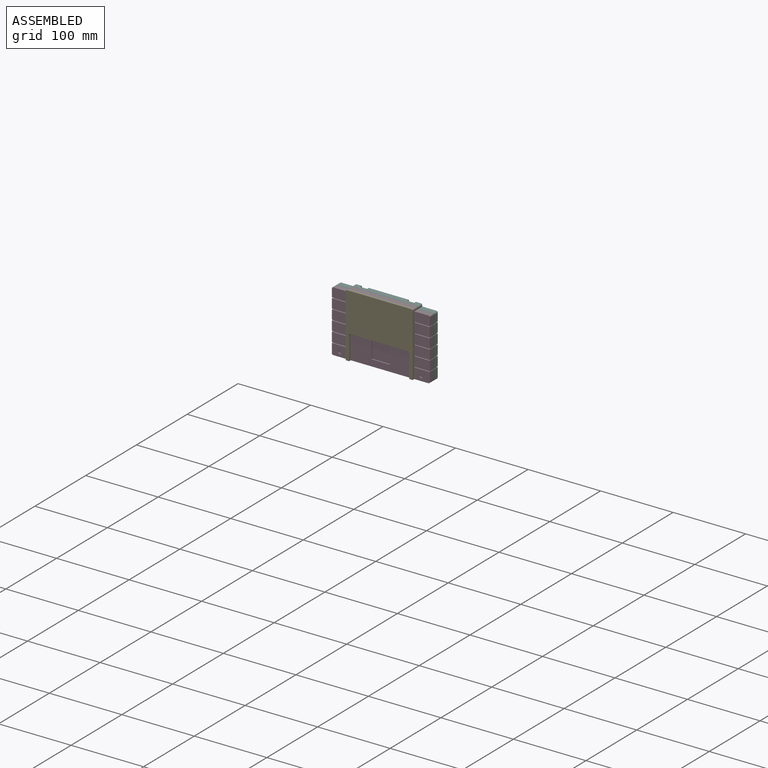
[diagram: assembled view]
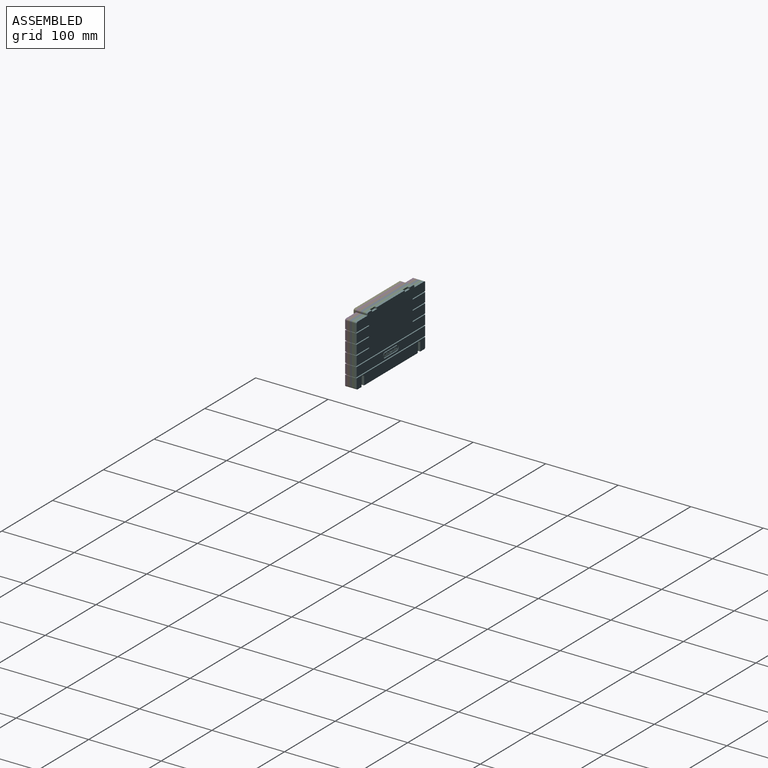
[diagram: assembled view, second angle]
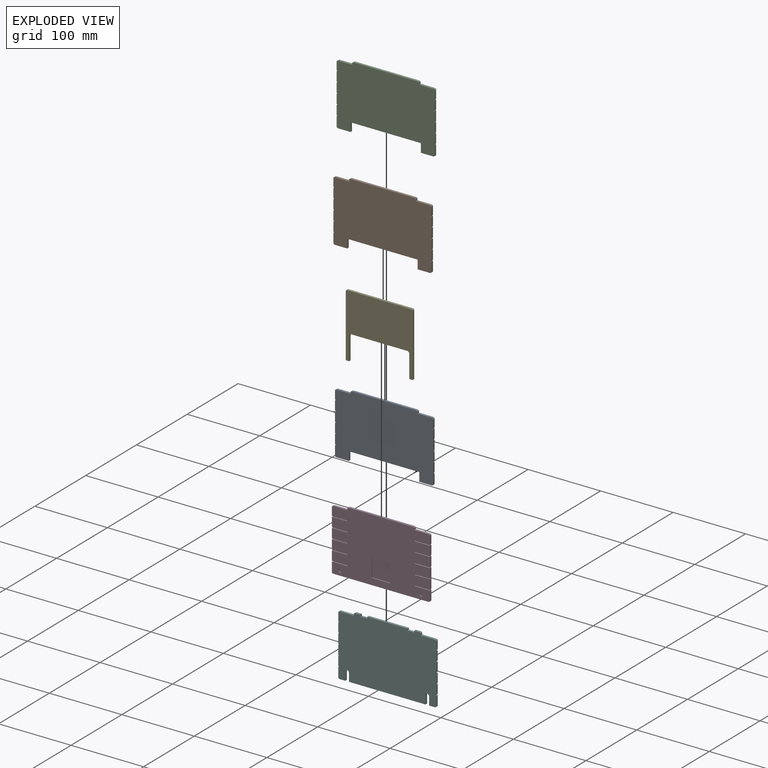
[diagram: exploded view]
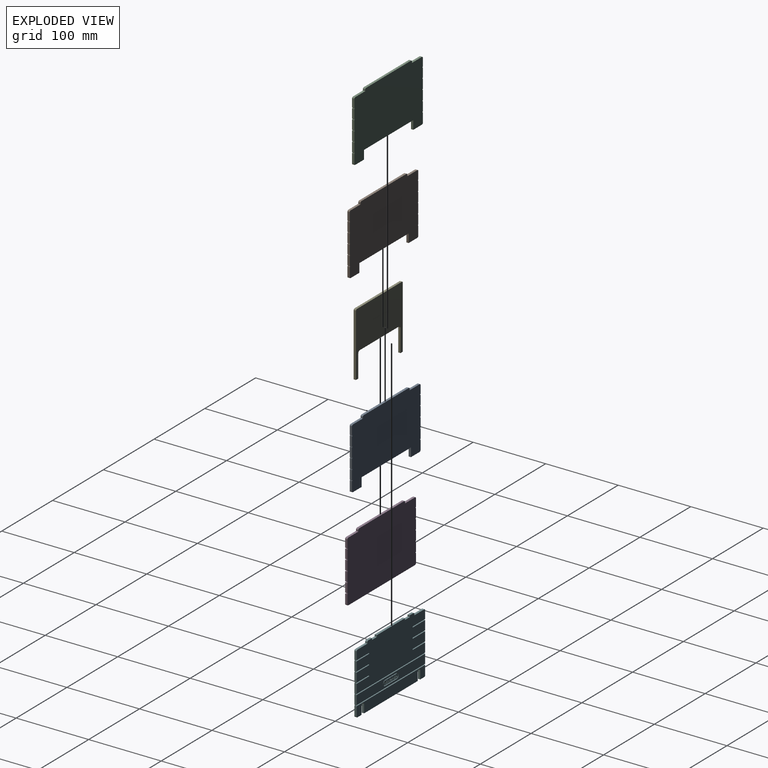
[diagram: exploded view, second angle]
ASSEMBLY  parts=6 mates=5
PART A: 60 faces, bbox 135x3.2x87.8 mm
  f0: plane 12.7x3.18mm, normal (-1,0,0), area 40.3mm2, adj f1,f57,f58,f59
  f1: plane 3.18x0.64mm, normal (0,0,-1), area 2mm2, adj f0,f2,f58,f59
  f2: plane 3.18x1.27mm, normal (-1,0,0), area 4mm2, adj f1,f3,f58,f59
  f3: plane 3.18x0.64mm, normal (0,0,1), area 2mm2, adj f2,f4,f58,f59
  f4: plane 12.73x3.18mm, normal (-1,0,0), area 40.4mm2, adj f3,f5,f58,f59
  f5: cylinder r=1.78mm len=3.18mm, axis (0,1,0), area 8.9mm2, adj f4,f6,f58,f59
  f6: plane 17.15x3.18mm, normal (0,0,-1), area 54.5mm2, adj f5,f7,f58,f59
  f7: plane 12.07x3.18mm, normal (1,0,0), area 38.3mm2, adj f6,f8,f58,f59
  f8: plane 97.16x3.18mm, normal (0,0,-1), area 308.5mm2, adj f7,f9,f58,f59
  f9: plane 12.07x3.18mm, normal (-1,0,0), area 38.3mm2, adj f8,f10,f58,f59
  f10: plane 17.15x3.18mm, normal (0,0,-1), area 54.5mm2, adj f9,f11,f58,f59
  f11: cylinder r=1.78mm len=3.18mm, axis (0,1,0), area 8.9mm2, adj f10,f12,f58,f59
  f12: plane 12.73x3.18mm, normal (1,0,0), area 40.4mm2, adj f11,f13,f58,f59
  f13: plane 3.18x0.64mm, normal (0,0,1), area 2mm2, adj f12,f14,f58,f59
  f14: plane 3.18x1.27mm, normal (1,0,0), area 4mm2, adj f13,f15,f58,f59
  f15: plane 3.18x0.64mm, normal (0,0,-1), area 2mm2, adj f14,f16,f58,f59
  f16: plane 12.7x3.18mm, normal (1,0,0), area 40.3mm2, adj f15,f17,f58,f59
  f17: plane 3.18x0.64mm, normal (0,0,1), area 2mm2, adj f16,f18,f58,f59
  f18: plane 3.18x1.27mm, normal (1,0,0), area 4mm2, adj f17,f19,f58,f59
  f19: plane 3.18x0.64mm, normal (0,0,-1), area 2mm2, adj f18,f20,f58,f59
  f20: plane 12.7x3.18mm, normal (1,0,0), area 40.3mm2, adj f19,f21,f58,f59
  f21: plane 3.18x0.64mm, normal (0,0,1), area 2mm2, adj f20,f22,f58,f59
  f22: plane 3.18x1.27mm, normal (1,0,0), area 4mm2, adj f21,f23,f58,f59
  f23: plane 3.18x0.64mm, normal (0,0,-1), area 2mm2, adj f22,f24,f58,f59
  f24: plane 12.7x3.18mm, normal (1,0,0), area 40.3mm2, adj f23,f25,f58,f59
  f25: plane 3.18x0.64mm, normal (0,0,1), area 2mm2, adj f24,f26,f58,f59
  f26: plane 3.18x1.27mm, normal (1,0,0), area 4mm2, adj f25,f27,f58,f59
  f27: plane 3.18x0.64mm, normal (0,0,-1), area 2mm2, adj f26,f28,f58,f59
  f28: plane 12.7x3.18mm, normal (1,0,0), area 40.3mm2, adj f27,f29,f58,f59
  f29: plane 3.18x0.64mm, normal (0,0,1), area 2mm2, adj f28,f30,f58,f59
  f30: plane 3.18x1.27mm, normal (1,0,0), area 4mm2, adj f29,f31,f58,f59
  f31: plane 3.18x0.64mm, normal (0,0,-1), area 2mm2, adj f30,f32,f58,f59
  f32: plane 10.92x3.18mm, normal (1,0,0), area 34.7mm2, adj f31,f33,f58,f59
  f33: cylinder r=1.78mm len=3.18mm, axis (0,1,0), area 8.9mm2, adj f32,f34,f58,f59
  f34: plane 19.61x3.18mm, normal (0,0,1), area 62.3mm2, adj f33,f35,f58,f59
  f35: plane 3.18x1.7mm, normal (1,0,0), area 5.4mm2, adj f34,f36,f58,f59
  f36: cylinder r=1.78mm len=3.18mm, axis (0,1,0), area 8.9mm2, adj f35,f37,f58,f59
  f37: plane 88.68x3.18mm, normal (0,0,1), area 281.6mm2, adj f36,f38,f58,f59
  f38: cylinder r=1.78mm len=3.18mm, axis (0,1,0), area 8.9mm2, adj f37,f39,f58,f59
  f39: plane 3.18x1.7mm, normal (-1,0,0), area 5.4mm2, adj f38,f40,f58,f59
  f40: plane 19.61x3.18mm, normal (0,0,1), area 62.3mm2, adj f39,f41,f58,f59
  f41: cylinder r=1.78mm len=3.18mm, axis (0,1,0), area 8.9mm2, adj f40,f42,f58,f59
  f42: plane 10.92x3.18mm, normal (-1,0,0), area 34.7mm2, adj f41,f43,f58,f59
  f43: plane 3.18x0.64mm, normal (0,0,-1), area 2mm2, adj f42,f44,f58,f59
  f44: plane 3.18x1.27mm, normal (-1,0,0), area 4mm2, adj f43,f45,f58,f59
  f45: plane 3.18x0.64mm, normal (0,0,1), area 2mm2, adj f44,f46,f58,f59
  f46: plane 12.7x3.18mm, normal (-1,0,0), area 40.3mm2, adj f45,f47,f58,f59
  f47: plane 3.18x0.64mm, normal (0,0,-1), area 2mm2, adj f46,f48,f58,f59
  f48: plane 3.18x1.27mm, normal (-1,0,0), area 4mm2, adj f47,f49,f58,f59
  f49: plane 3.18x0.64mm, normal (0,0,1), area 2mm2, adj f48,f50,f58,f59
  f50: plane 12.7x3.18mm, normal (-1,0,0), area 40.3mm2, adj f49,f51,f58,f59
  f51: plane 3.18x0.64mm, normal (0,0,-1), area 2mm2, adj f50,f52,f58,f59
  f52: plane 3.18x1.27mm, normal (-1,0,0), area 4mm2, adj f51,f53,f58,f59
  f53: plane 3.18x0.64mm, normal (0,0,1), area 2mm2, adj f52,f54,f58,f59
  f54: plane 12.7x3.18mm, normal (-1,0,0), area 40.3mm2, adj f53,f55,f58,f59
  f55: plane 3.18x0.64mm, normal (0,0,-1), area 2mm2, adj f54,f56,f58,f59
  f56: plane 3.18x1.27mm, normal (-1,0,0), area 4mm2, adj f55,f57,f58,f59
  f57: plane 3.18x0.64mm, normal (0,0,1), area 2mm2, adj f0,f56,f58,f59
  f58: plane 135.01x87.83mm, normal (0,-1,0), area 10525.3mm2, adj f0,f1,f2,f3,f4,f5,f6,f7
  f59: plane 135.01x87.83mm, normal (0,1,0), area 10525.3mm2, adj f0,f1,f2,f3,f4,f5,f6,f7
PART B: same geometry as A
PART C: same geometry as A
PART D: 85 faces, bbox 135x3.2x87.8 mm
  f0: plane 135.01x87.83mm, normal (0,-1,0), area 10748.2mm2, adj f2,f3,f4,f6,f7,f8,f10,f11
  f1: plane 1.59x1.27mm, normal (1,0,0), area 2mm2, adj f2,f54,f55,f63
  f2: plane 21.39x3.18mm, normal (0,0,-1), area 35mm2, adj f0,f1,f3,f55,f62,f63
  f3: plane 12.7x3.18mm, normal (1,0,0), area 40.3mm2, adj f0,f2,f4,f55
  f4: plane 21.39x3.18mm, normal (0,0,1), area 35mm2, adj f0,f3,f5,f55,f60,f61
  f5: plane 1.59x1.27mm, normal (1,0,0), area 2mm2, adj f4,f6,f55,f61
  f6: plane 21.39x3.18mm, normal (0,0,-1), area 35mm2, adj f0,f5,f7,f55,f60,f61
  f7: plane 12.7x3.18mm, normal (1,0,0), area 40.3mm2, adj f0,f6,f8,f55
  f8: plane 21.39x3.18mm, normal (0,0,1), area 35mm2, adj f0,f7,f9,f55,f58,f59
  f9: plane 1.59x1.27mm, normal (1,0,0), area 2mm2, adj f8,f10,f55,f59
  f10: plane 21.39x3.18mm, normal (0,0,-1), area 35mm2, adj f0,f9,f11,f55,f58,f59
  f11: plane 10.92x3.18mm, normal (1,0,0), area 34.7mm2, adj f0,f10,f12,f55
  f12: cylinder r=1.78mm len=3.18mm, axis (0,-1,0), area 8.9mm2, adj f0,f11,f13,f55
  f13: plane 19.61x3.18mm, normal (0,0,1), area 62.3mm2, adj f0,f12,f14,f55
  f14: plane 3.18x1.7mm, normal (1,0,0), area 5.4mm2, adj f0,f13,f15,f55
  f15: cylinder r=1.78mm len=3.18mm, axis (0,-1,0), area 8.9mm2, adj f0,f14,f16,f55
  f16: plane 88.68x3.18mm, normal (0,0,1), area 281.6mm2, adj f0,f15,f17,f55
  f17: cylinder r=1.78mm len=3.18mm, axis (0,-1,0), area 8.9mm2, adj f0,f16,f18,f55
  f18: plane 3.18x1.7mm, normal (-1,0,0), area 5.4mm2, adj f0,f17,f19,f55
  f19: plane 19.61x3.18mm, normal (0,0,1), area 62.3mm2, adj f0,f18,f20,f55
  f20: cylinder r=1.78mm len=3.18mm, axis (0,-1,0), area 8.9mm2, adj f0,f19,f21,f55
  f21: plane 10.92x3.18mm, normal (-1,0,0), area 34.7mm2, adj f0,f20,f22,f55
  f22: plane 21.39x3.18mm, normal (0,0,-1), area 35mm2, adj f0,f21,f23,f55,f56,f57
  f23: plane 1.59x1.27mm, normal (-1,0,0), area 2mm2, adj f22,f24,f55,f57
  f24: plane 21.39x3.18mm, normal (0,0,1), area 35mm2, adj f0,f23,f25,f55,f56,f57
  f25: plane 12.7x3.18mm, normal (-1,0,0), area 40.3mm2, adj f0,f24,f26,f55
  f26: plane 21.39x3.18mm, normal (0,0,-1), area 35mm2, adj f0,f25,f27,f55,f66,f67
  f27: plane 1.59x1.27mm, normal (-1,0,0), area 2mm2, adj f26,f28,f55,f67
  f28: plane 21.39x3.18mm, normal (0,0,1), area 35mm2, adj f0,f27,f29,f55,f66,f67
  f29: plane 12.7x3.18mm, normal (-1,0,0), area 40.3mm2, adj f0,f28,f30,f55
  f30: plane 21.39x3.18mm, normal (0,0,-1), area 35mm2, adj f0,f29,f31,f55,f68,f69
  f31: plane 1.59x1.27mm, normal (-1,0,0), area 2mm2, adj f30,f32,f55,f69
  f32: plane 21.39x3.18mm, normal (0,0,1), area 35mm2, adj f0,f31,f33,f55,f68,f69
  f33: plane 12.7x3.18mm, normal (-1,0,0), area 40.3mm2, adj f0,f32,f34,f55
  f34: plane 21.39x3.18mm, normal (0,0,-1), area 35mm2, adj f0,f33,f35,f55,f70,f71
  f35: plane 1.59x1.27mm, normal (-1,0,0), area 2mm2, adj f34,f36,f55,f71
  f36: plane 21.39x3.18mm, normal (0,0,1), area 35mm2, adj f0,f35,f37,f55,f70,f71
  f37: plane 12.7x3.18mm, normal (-1,0,0), area 40.3mm2, adj f0,f36,f38,f55
  f38: plane 21.39x3.18mm, normal (0,0,-1), area 35mm2, adj f0,f37,f39,f55,f72,f73
  f39: plane 1.59x1.27mm, normal (-1,0,0), area 2mm2, adj f38,f40,f55,f73
  f40: plane 21.39x3.18mm, normal (0,0,1), area 35mm2, adj f0,f39,f41,f55,f72,f73
  f41: plane 12.73x3.18mm, normal (-1,0,0), area 40.4mm2, adj f0,f40,f42,f55
  f42: cylinder r=1.78mm len=3.18mm, axis (0,-1,0), area 8.9mm2, adj f0,f41,f43,f55
  f43: plane 131.46x3.18mm, normal (0,0,-1), area 417.4mm2, adj f0,f42,f44,f55
  f44: cylinder r=1.78mm len=3.18mm, axis (0,-1,0), area 8.9mm2, adj f0,f43,f45,f55
  f45: plane 12.73x3.18mm, normal (1,0,0), area 40.4mm2, adj f0,f44,f46,f55
  f46: plane 21.39x3.18mm, normal (0,0,1), area 35mm2, adj f0,f45,f47,f55,f83,f84
  f47: plane 1.59x1.27mm, normal (1,0,0), area 2mm2, adj f46,f48,f55,f84
  f48: plane 21.39x3.18mm, normal (0,0,-1), area 35mm2, adj f0,f47,f49,f55,f83,f84
  f49: plane 12.7x3.18mm, normal (1,0,0), area 40.3mm2, adj f0,f48,f50,f55
  f50: plane 21.39x3.18mm, normal (0,0,1), area 35mm2, adj f0,f49,f51,f55,f64,f65
  f51: plane 1.59x1.27mm, normal (1,0,0), area 2mm2, adj f50,f52,f55,f65
  f52: plane 21.39x3.18mm, normal (0,0,-1), area 35mm2, adj f0,f51,f53,f55,f64,f65
  f53: plane 12.7x3.18mm, normal (1,0,0), area 40.3mm2, adj f0,f52,f54,f55
  f54: plane 21.39x3.18mm, normal (0,0,1), area 35mm2, adj f0,f1,f53,f55,f62,f63
  f55: plane 135.01x87.83mm, normal (0,1,0), area 11697.5mm2, adj f1,f2,f3,f4,f5,f6,f7,f8
  f56: plane 1.59x1.27mm, normal (-1,0,0), area 2mm2, adj f0,f22,f24,f57
  f57: plane 20.75x1.27mm, normal (0,-1,0), area 26.4mm2, adj f22,f23,f24,f56
  f58: plane 1.59x1.27mm, normal (1,0,0), area 2mm2, adj f0,f8,f10,f59
  f59: plane 20.75x1.27mm, normal (0,-1,0), area 26.4mm2, adj f8,f9,f10,f58
  f60: plane 1.59x1.27mm, normal (1,0,0), area 2mm2, adj f0,f4,f6,f61
  f61: plane 20.75x1.27mm, normal (0,-1,0), area 26.4mm2, adj f4,f5,f6,f60
  f62: plane 1.59x1.27mm, normal (1,0,0), area 2mm2, adj f0,f2,f54,f63
  f63: plane 20.75x1.27mm, normal (0,-1,0), area 26.4mm2, adj f1,f2,f54,f62
  f64: plane 1.59x1.27mm, normal (1,0,0), area 2mm2, adj f0,f50,f52,f65
  f65: plane 20.75x1.27mm, normal (0,-1,0), area 26.4mm2, adj f50,f51,f52,f64
  f66: plane 1.59x1.27mm, normal (-1,0,0), area 2mm2, adj f0,f26,f28,f67
  f67: plane 20.75x1.27mm, normal (0,-1,0), area 26.4mm2, adj f26,f27,f28,f66
  f68: plane 1.59x1.27mm, normal (-1,0,0), area 2mm2, adj f0,f30,f32,f69
  f69: plane 20.75x1.27mm, normal (0,-1,0), area 26.4mm2, adj f30,f31,f32,f68
  f70: plane 1.59x1.27mm, normal (-1,0,0), area 2mm2, adj f0,f34,f36,f71
  f71: plane 20.75x1.27mm, normal (0,-1,0), area 26.4mm2, adj f34,f35,f36,f70
  f72: plane 1.59x1.27mm, normal (-1,0,0), area 2mm2, adj f0,f38,f40,f73
  f73: plane 20.75x1.27mm, normal (0,-1,0), area 26.4mm2, adj f38,f39,f40,f72
  f74: cylinder r=2.54mm len=5.08mm, axis (0,-1,0), area 25.3mm2, adj f0,f75
  f75: plane 5.08x5.08mm, normal (0,-1,0), area 20.3mm2, adj f74
  f76: plane 25.4x1.59mm, normal (1,0,0), area 40.3mm2, adj f0,f77,f79,f80
  f77: plane 25.4x1.59mm, normal (0,0,1), area 40.3mm2, adj f0,f76,f78,f80
  f78: plane 25.4x1.59mm, normal (-1,0,0), area 40.3mm2, adj f0,f77,f79,f80
  f79: plane 25.4x1.59mm, normal (0,0,-1), area 40.3mm2, adj f0,f76,f78,f80
  f80: plane 25.4x25.4mm, normal (0,-1,0), area 645.2mm2, adj f76,f77,f78,f79
  f81: cylinder r=2.54mm len=5.08mm, axis (0,-1,0), area 25.3mm2, adj f0,f82
  f82: plane 5.08x5.08mm, normal (0,-1,0), area 20.3mm2, adj f81
  f83: plane 1.59x1.27mm, normal (1,0,0), area 2mm2, adj f0,f46,f48,f84
  f84: plane 20.75x1.27mm, normal (0,-1,0), area 26.4mm2, adj f46,f47,f48,f83
PART E: 14 faces, bbox 92.2x3.2x87.8 mm
  f0: cylinder r=1.78mm len=3.18mm, axis (0,1,0), area 8.9mm2, adj f1,f11,f12,f13
  f1: plane 88.68x3.18mm, normal (0,0,1), area 281.6mm2, adj f0,f2,f12,f13
  f2: cylinder r=1.78mm len=3.18mm, axis (0,1,0), area 8.9mm2, adj f1,f3,f12,f13
  f3: plane 86.06x3.18mm, normal (-1,0,0), area 273.2mm2, adj f2,f4,f12,f13
  f4: plane 4.57x3.18mm, normal (0,0,-1), area 14.5mm2, adj f3,f5,f12,f13
  f5: plane 31.41x3.18mm, normal (1,0,0), area 99.7mm2, adj f4,f6,f12,f13
  f6: cylinder r=2.9mm len=3.18mm, axis (0,1,0), area 14.5mm2, adj f5,f7,f12,f13
  f7: plane 77.29x3.18mm, normal (0,0,-1), area 245.4mm2, adj f6,f8,f12,f13
  f8: cylinder r=2.9mm len=3.18mm, axis (0,1,0), area 14.5mm2, adj f7,f9,f12,f13
  f9: plane 31.41x3.18mm, normal (-1,0,0), area 99.7mm2, adj f8,f10,f12,f13
  f10: plane 4.57x3.18mm, normal (0,0,-1), area 14.5mm2, adj f9,f11,f12,f13
  f11: plane 86.06x3.18mm, normal (1,0,0), area 273.2mm2, adj f0,f10,f12,f13
  f12: plane 92.24x87.83mm, normal (0,-1,0), area 5252.4mm2, adj f0,f1,f2,f3,f4,f5,f6,f7
  f13: plane 92.24x87.83mm, normal (0,1,0), area 5252.4mm2, adj f0,f1,f2,f3,f4,f5,f6,f7
PART F: 222 faces, bbox 135x3.2x87.8 mm
  f0: plane 135.01x58.09mm, normal (0,-1,0), area 7459.4mm2, adj f7,f8,f10,f11,f12,f14,f15,f16
  f1: plane 135.01x12.7mm, normal (0,-1,0), area 1494.8mm2, adj f4,f5,f52,f53,f78,f79,f80,f87
  f2: plane 135.01x14.5mm, normal (0,-1,0), area 1821.4mm2, adj f55,f56,f57,f58,f59,f60,f61,f62
  f3: plane 1.59x1.27mm, normal (1,0,0), area 2mm2, adj f4,f55,f69,f93
  f4: plane 135.01x3.18mm, normal (0,0,-1), area 216.3mm2, adj f1,f3,f5,f53,f54,f69,f93
  f5: plane 12.7x3.18mm, normal (1,0,0), area 40.3mm2, adj f1,f4,f52,f69
  f6: plane 1.59x1.27mm, normal (1,0,0), area 2mm2, adj f50,f52,f69,f94
  f7: plane 12.7x3.18mm, normal (1,0,0), area 40.3mm2, adj f0,f8,f50,f69
  f8: plane 24.13x3.18mm, normal (0,0,1), area 39.3mm2, adj f0,f7,f9,f69,f72,f73
  f9: plane 1.59x1.27mm, normal (1,0,0), area 2mm2, adj f8,f10,f69,f73
  f10: plane 24.13x3.18mm, normal (0,0,-1), area 39.3mm2, adj f0,f9,f11,f69,f72,f73
  f11: plane 12.7x3.18mm, normal (1,0,0), area 40.3mm2, adj f0,f10,f12,f69
  f12: plane 24.13x3.18mm, normal (0,0,1), area 39.3mm2, adj f0,f11,f13,f69,f74,f75
  f13: plane 1.59x1.27mm, normal (1,0,0), area 2mm2, adj f12,f14,f69,f75
  f14: plane 24.13x3.18mm, normal (0,0,-1), area 39.3mm2, adj f0,f13,f15,f69,f74,f75
  f15: plane 12.7x3.18mm, normal (1,0,0), area 40.3mm2, adj f0,f14,f16,f69
  f16: plane 24.13x3.18mm, normal (0,0,1), area 39.3mm2, adj f0,f15,f17,f69,f76,f77
  f17: plane 1.59x1.27mm, normal (1,0,0), area 2mm2, adj f16,f18,f69,f77
  f18: plane 24.13x3.18mm, normal (0,0,-1), area 39.3mm2, adj f0,f17,f19,f69,f76,f77
  f19: plane 10.92x3.18mm, normal (1,0,0), area 34.7mm2, adj f0,f18,f20,f69
  f20: cylinder r=1.78mm len=3.18mm, axis (0,-1,0), area 8.9mm2, adj f0,f19,f21,f69
  f21: plane 19.61x3.18mm, normal (0,0,1), area 62.3mm2, adj f0,f20,f22,f69
  f22: plane 3.18x1.7mm, normal (1,0,0), area 5.4mm2, adj f0,f21,f23,f69
  f23: cylinder r=1.78mm len=3.18mm, axis (0,-1,0), area 8.9mm2, adj f0,f22,f24,f69
  f24: plane 7.11x3.18mm, normal (0,0,1), area 22.6mm2, adj f0,f23,f25,f69
  f25: plane 3.18x2.29mm, normal (-1,0,0), area 7.3mm2, adj f0,f24,f26,f69
  f26: plane 9.65x3.18mm, normal (0,0,1), area 30.6mm2, adj f0,f25,f27,f69
  f27: plane 3.18x2.29mm, normal (1,0,0), area 7.3mm2, adj f0,f26,f28,f69
  f28: plane 55.15x3.18mm, normal (0,0,1), area 175.1mm2, adj f0,f27,f29,f69
  f29: plane 3.18x2.29mm, normal (-1,0,0), area 7.3mm2, adj f0,f28,f30,f69
  f30: plane 9.65x3.18mm, normal (0,0,1), area 30.6mm2, adj f0,f29,f31,f69
  f31: plane 3.18x2.29mm, normal (1,0,0), area 7.3mm2, adj f0,f30,f32,f69
  f32: plane 7.11x3.18mm, normal (0,0,1), area 22.6mm2, adj f0,f31,f33,f69
  f33: cylinder r=1.78mm len=3.18mm, axis (0,-1,0), area 8.9mm2, adj f0,f32,f34,f69
  f34: plane 3.18x1.7mm, normal (-1,0,0), area 5.4mm2, adj f0,f33,f35,f69
  f35: plane 19.61x3.18mm, normal (0,0,1), area 62.3mm2, adj f0,f34,f36,f69
  f36: cylinder r=1.78mm len=3.18mm, axis (0,-1,0), area 8.9mm2, adj f0,f35,f37,f69
  f37: plane 10.92x3.18mm, normal (-1,0,0), area 34.7mm2, adj f0,f36,f38,f69
  f38: plane 24.13x3.18mm, normal (0,0,-1), area 39.3mm2, adj f0,f37,f39,f69,f89,f90
  f39: plane 1.59x1.27mm, normal (-1,0,0), area 2mm2, adj f38,f40,f69,f90
  f40: plane 24.13x3.18mm, normal (0,0,1), area 39.3mm2, adj f0,f39,f41,f69,f89,f90
  f41: plane 12.7x3.18mm, normal (-1,0,0), area 40.3mm2, adj f0,f40,f42,f69
  f42: plane 24.13x3.18mm, normal (0,0,-1), area 39.3mm2, adj f0,f41,f43,f69,f91,f92
  f43: plane 1.59x1.27mm, normal (-1,0,0), area 2mm2, adj f42,f44,f69,f92
  f44: plane 24.13x3.18mm, normal (0,0,1), area 39.3mm2, adj f0,f43,f45,f69,f91,f92
  f45: plane 12.7x3.18mm, normal (-1,0,0), area 40.3mm2, adj f0,f44,f46,f69
  f46: plane 24.13x3.18mm, normal (0,0,-1), area 39.3mm2, adj f0,f45,f47,f69,f70,f71
  f47: plane 1.59x1.27mm, normal (-1,0,0), area 2mm2, adj f46,f48,f69,f71
  f48: plane 24.13x3.18mm, normal (0,0,1), area 39.3mm2, adj f0,f47,f49,f69,f70,f71
  f49: plane 12.7x3.18mm, normal (-1,0,0), area 40.3mm2, adj f0,f48,f50,f69
  f50: plane 135.01x3.18mm, normal (0,0,-1), area 216.3mm2, adj f0,f6,f7,f49,f51,f69,f94
  f51: plane 1.59x1.27mm, normal (-1,0,0), area 2mm2, adj f50,f52,f69,f94
  f52: plane 135.01x3.18mm, normal (0,0,1), area 216.3mm2, adj f1,f5,f6,f51,f53,f69,f94
  f53: plane 12.7x3.18mm, normal (-1,0,0), area 40.3mm2, adj f1,f4,f52,f69
  f54: plane 1.59x1.27mm, normal (-1,0,0), area 2mm2, adj f4,f55,f69,f93
  f55: plane 135.01x3.18mm, normal (0,0,1), area 216.3mm2, adj f2,f3,f54,f56,f68,f69,f93
  f56: plane 12.73x3.18mm, normal (-1,0,0), area 40.4mm2, adj f2,f55,f57,f69
  f57: cylinder r=1.78mm len=3.18mm, axis (0,-1,0), area 8.9mm2, adj f2,f56,f58,f69
  f58: plane 7.88x3.18mm, normal (0,0,-1), area 25mm2, adj f2,f57,f59,f69
  f59: plane 11.33x3.18mm, normal (1,0,0), area 36mm2, adj f2,f58,f60,f69
  f60: cylinder r=2.54mm len=5.08mm, axis (0,-1,0), area 25.3mm2, adj f2,f59,f61,f69
  f61: plane 11.33x3.18mm, normal (-1,0,0), area 36mm2, adj f2,f60,f62,f69
  f62: plane 105.55x3.18mm, normal (0,0,-1), area 335.1mm2, adj f2,f61,f63,f69
  f63: plane 11.33x3.18mm, normal (1,0,0), area 36mm2, adj f2,f62,f64,f69
  f64: cylinder r=2.54mm len=5.08mm, axis (0,-1,0), area 25.3mm2, adj f2,f63,f65,f69
  f65: plane 11.33x3.18mm, normal (-1,0,0), area 36mm2, adj f2,f64,f66,f69
  f66: plane 7.88x3.18mm, normal (0,0,-1), area 25mm2, adj f2,f65,f67,f69
  f67: cylinder r=1.78mm len=3.18mm, axis (0,-1,0), area 8.9mm2, adj f2,f66,f68,f69
  f68: plane 12.73x3.18mm, normal (1,0,0), area 40.4mm2, adj f2,f55,f67,f69
  f69: plane 135.01x87.83mm, normal (0,1,0), area 11518mm2, adj f3,f4,f5,f6,f7,f8,f9,f10
  f70: cylinder r=0.64mm len=1.59mm, axis (0,-1,0), area 3.2mm2, adj f0,f46,f48,f71
  f71: plane 24.13x1.27mm, normal (0,-1,0), area 30.5mm2, adj f46,f47,f48,f70
  f72: cylinder r=0.64mm len=1.59mm, axis (0,-1,0), area 3.2mm2, adj f0,f8,f10,f73
  f73: plane 24.13x1.27mm, normal (0,-1,0), area 30.5mm2, adj f8,f9,f10,f72
  f74: cylinder r=0.64mm len=1.59mm, axis (0,-1,0), area 3.2mm2, adj f0,f12,f14,f75
  f75: plane 24.13x1.27mm, normal (0,-1,0), area 30.5mm2, adj f12,f13,f14,f74
  f76: cylinder r=0.64mm len=1.59mm, axis (0,-1,0), area 3.2mm2, adj f0,f16,f18,f77
  f77: plane 24.13x1.27mm, normal (0,-1,0), area 30.5mm2, adj f16,f17,f18,f76
  f78: cylinder r=3.81mm len=7.62mm, axis (0,-1,0), area 19mm2, adj f1,f79,f87,f88
  f79: plane 22.86x1.59mm, normal (0,0,-1), area 36.3mm2, adj f1,f78,f80,f88
  f80: cylinder r=3.81mm len=7.62mm, axis (0,-1,0), area 19mm2, adj f1,f79,f87,f88
  f81: extruded ~3.1x2.87mm, area 7.5mm2, adj f82,f86,f88,f95
  f82: plane 22.83x1.59mm, normal (0,0,1), area 36.2mm2, adj f81,f83,f88,f95
  f83: extruded ~3.1x2.87mm, area 7.5mm2, adj f82,f84,f88,f95
  f84: extruded ~3.1x2.87mm, area 7.5mm2, adj f83,f85,f88,f95
  f85: plane 22.83x1.59mm, normal (0,0,-1), area 36.2mm2, adj f84,f86,f88,f95
  f86: extruded ~3.1x2.87mm, area 7.5mm2, adj f81,f85,f88,f95
  f87: plane 22.86x1.59mm, normal (0,0,1), area 36.3mm2, adj f1,f78,f80,f88
  f88: plane 30.48x7.62mm, normal (0,-1,0), area 60mm2, adj f78,f79,f80,f81,f82,f83,f84,f85
  f89: cylinder r=0.64mm len=1.59mm, axis (0,-1,0), area 3.2mm2, adj f0,f38,f40,f90
  f90: plane 24.13x1.27mm, normal (0,-1,0), area 30.5mm2, adj f38,f39,f40,f89
  f91: cylinder r=0.64mm len=1.59mm, axis (0,-1,0), area 3.2mm2, adj f0,f42,f44,f92
  f92: plane 24.13x1.27mm, normal (0,-1,0), area 30.5mm2, adj f42,f43,f44,f91
  f93: plane 133.74x1.27mm, normal (0,-1,0), area 169.9mm2, adj f3,f4,f54,f55
  f94: plane 133.74x1.27mm, normal (0,-1,0), area 169.9mm2, adj f6,f50,f51,f52
  f95: plane 29.04x5.77mm, normal (0,-1,0), area 111.5mm2, adj f81,f82,f83,f84,f85,f86,f96,f97
  f96: plane 1.59x0.31mm, normal (0,0,-1), area 0.5mm2, adj f95,f97,f110,f111
  f97: plane 1.59x0.82mm, normal (1,0,0), area 1.3mm2, adj f95,f96,f98,f111
  f98: plane 1.59x0.12mm, normal (0,0,1), area 0.2mm2, adj f95,f97,f99,f111
  f99: plane 1.59x0.35mm, normal (-1,0,0), area 0.6mm2, adj f95,f98,f100,f111
  f100: plane 1.59x0.14mm, normal (0,0,1), area 0.2mm2, adj f95,f99,f101,f111
  f101: plane 1.59x0.35mm, normal (0.85,0,0.52), area 0.7mm2, adj f95,f100,f102,f111
  f102: plane 1.59x0.14mm, normal (0,0,1), area 0.2mm2, adj f95,f101,f103,f111
  f103: plane 1.59x0.36mm, normal (-0.84,0,-0.54), area 0.7mm2, adj f95,f102,f104,f111
  f104: extruded ~1.59x0.22mm, area 0.5mm2, adj f95,f103,f110,f111
  f105: extruded ~1.59x0.2mm, area 0.4mm2, adj f106,f109,f111,f112
  f106: plane 1.59x0.15mm, normal (0,0,-1), area 0.2mm2, adj f105,f107,f111,f112
  f107: plane 1.59x0.25mm, normal (-1,0,0), area 0.4mm2, adj f106,f108,f111,f112
  f108: plane 1.59x0.17mm, normal (0,0,1), area 0.3mm2, adj f107,f109,f111,f112
  f109: extruded ~1.59x0.18mm, area 0.4mm2, adj f105,f108,f111,f112
  f110: extruded ~1.59x0.29mm, area 0.7mm2, adj f95,f96,f104,f111
  f111: plane 0.82x0.62mm, normal (0,-1,0), area 0.3mm2, adj f96,f97,f98,f99,f100,f101,f102,f103
  f112: plane 0.35x0.25mm, normal (0,-1,0), area 0.1mm2, adj f105,f106,f107,f108,f109
  f113: extruded ~1.59x1.58mm, area 3.6mm2, adj f95,f114,f125,f126
  f114: extruded ~1.59x1.58mm, area 3.6mm2, adj f95,f113,f115,f126
  f115: extruded ~1.59x1.58mm, area 3.6mm2, adj f95,f114,f125,f126
  f116: extruded ~1.59x0.53mm, area 1.2mm2, adj f117,f124,f126,f127
  f117: extruded ~1.59x0.53mm, area 1.2mm2, adj f116,f118,f126,f127
  f118: extruded ~1.59x0.51mm, area 0.8mm2, adj f117,f119,f126,f127
  f119: plane 1.59x0mm, normal (1,0,0), area 0mm2, adj f118,f120,f126,f127
  f120: extruded ~1.59x0.5mm, area 0.8mm2, adj f119,f121,f126,f127
  f121: extruded ~1.59x0.54mm, area 1.2mm2, adj f120,f122,f126,f127
  f122: extruded ~1.59x0.54mm, area 1.2mm2, adj f121,f123,f126,f127
  f123: extruded ~1.59x0.51mm, area 0.8mm2, adj f122,f124,f126,f127
  f124: extruded ~1.59x0.5mm, area 0.8mm2, adj f116,f123,f126,f127
  f125: extruded ~1.59x1.58mm, area 3.6mm2, adj f95,f113,f115,f126
  f126: plane 3.15x2.68mm, normal (0,-1,0), area 5mm2, adj f113,f114,f115,f116,f117,f118,f119,f120
  f127: plane 2.08x0.88mm, normal (0,-1,0), area 1.7mm2, adj f116,f117,f118,f119,f120,f121,f122,f123
  f128: plane 1.59x1.32mm, normal (1,0,0), area 2.1mm2, adj f95,f129,f142,f143
  f129: extruded ~1.59x0.61mm, area 1mm2, adj f95,f128,f130,f143
  f130: extruded ~1.59x1.37mm, area 3.3mm2, adj f95,f129,f131,f143
  f131: extruded ~1.59x1.18mm, area 2.3mm2, adj f95,f130,f132,f143
  f132: extruded ~1.59x1.24mm, area 2.1mm2, adj f95,f131,f133,f143
  f133: extruded ~1.59x0.14mm, area 0.2mm2, adj f95,f132,f134,f143
  f134: plane 1.59x1.07mm, normal (0,0,1), area 1.7mm2, adj f95,f133,f135,f143
  f135: plane 3.59x1.59mm, normal (-1,0,0), area 5.7mm2, adj f95,f134,f142,f143
  f136: extruded ~1.59x0.46mm, area 1.1mm2, adj f137,f141,f143,f144
  f137: extruded ~1.59x0.46mm, area 1.1mm2, adj f136,f138,f143,f144
  f138: plane 1.59x0.85mm, normal (1,0,0), area 1.3mm2, adj f137,f139,f143,f144
  f139: extruded ~1.59x0.46mm, area 1.1mm2, adj f138,f140,f143,f144
  f140: extruded ~1.59x0.46mm, area 1.1mm2, adj f139,f141,f143,f144
  f141: plane 1.59x0.85mm, normal (-1,0,0), area 1.3mm2, adj f136,f140,f143,f144
  f142: plane 1.59x1.06mm, normal (0,0,-1), area 1.7mm2, adj f95,f128,f135,f143
  f143: plane 3.69x3.05mm, normal (0,-1,0), area 6.7mm2, adj f128,f129,f130,f131,f132,f133,f134,f135
  f144: plane 1.78x0.85mm, normal (0,-1,0), area 1.4mm2, adj f136,f137,f138,f139,f140,f141
  f145: extruded ~1.59x1.22mm, area 3mm2, adj f95,f146,f156,f157
  f146: extruded ~1.59x0.86mm, area 1.5mm2, adj f95,f145,f147,f157
  f147: extruded ~1.59x0.25mm, area 0.4mm2, adj f95,f146,f148,f157
  f148: plane 1.59x1.07mm, normal (0,0,-1), area 1.7mm2, adj f95,f147,f149,f157
  f149: plane 2.39x1.59mm, normal (1,0,0), area 3.8mm2, adj f95,f148,f150,f157
  f150: plane 1.59x1.07mm, normal (0,0,1), area 1.7mm2, adj f95,f149,f151,f157
  f151: extruded ~1.59x1.57mm, area 2.5mm2, adj f95,f150,f152,f157
  f152: extruded ~1.59x0.51mm, area 1.2mm2, adj f95,f151,f153,f157
  f153: extruded ~1.59x0.49mm, area 1.2mm2, adj f95,f152,f154,f157
  f154: plane 1.59x1.57mm, normal (1,0,0), area 2.5mm2, adj f95,f153,f155,f157
  f155: plane 1.59x1.07mm, normal (0,0,1), area 1.7mm2, adj f95,f154,f156,f157
  f156: extruded ~1.59x1.3mm, area 2.1mm2, adj f95,f145,f155,f157
  f157: plane 3.15x2.51mm, normal (0,-1,0), area 5.4mm2, adj f145,f146,f147,f148,f149,f150,f151,f152
  f158: plane 1.59x0.59mm, normal (0,0,-1), area 0.9mm2, adj f95,f159,f169,f170
  f159: plane 1.59x0.35mm, normal (1,0,0), area 0.6mm2, adj f95,f158,f160,f170
  f160: plane 1.59x0.59mm, normal (0,0,1), area 0.9mm2, adj f95,f159,f161,f170
  f161: plane 2.38x1.59mm, normal (1,0,0), area 3.8mm2, adj f95,f160,f162,f170
  f162: plane 1.59x1.08mm, normal (0,0,1), area 1.7mm2, adj f95,f161,f163,f170
  f163: plane 2.38x1.59mm, normal (-1,0,0), area 3.8mm2, adj f95,f162,f164,f170
  f164: plane 1.59x0.58mm, normal (0,0,1), area 0.9mm2, adj f95,f163,f165,f170
  f165: plane 1.59x0.36mm, normal (-1,0,0), area 0.6mm2, adj f95,f164,f166,f170
  f166: plane 1.59x0.58mm, normal (0,0,-1), area 0.9mm2, adj f95,f165,f167,f170
  f167: plane 1.59x0.48mm, normal (-1,0,0), area 0.8mm2, adj f95,f166,f168,f170
  f168: plane 1.59x1.08mm, normal (0,0,-1), area 1.7mm2, adj f95,f167,f169,f170
  f169: plane 1.59x0.48mm, normal (1,0,0), area 0.8mm2, adj f95,f158,f168,f170
  f170: plane 3.22x2.25mm, normal (0,-1,0), area 3.9mm2, adj f158,f159,f160,f161,f162,f163,f164,f165
  f171: extruded ~1.59x0.38mm, area 0.7mm2, adj f172,f185,f186,f221
  f172: extruded ~1.59x0.38mm, area 0.7mm2, adj f171,f173,f186,f221
  f173: extruded ~1.59x0.47mm, area 0.8mm2, adj f172,f174,f186,f221
  f174: plane 1.59x0.9mm, normal (0,0,-1), area 1.4mm2, adj f173,f185,f186,f221
  f175: extruded ~1.59x0.15mm, area 0.2mm2, adj f95,f176,f184,f186
  f176: extruded ~1.59x0.53mm, area 1.2mm2, adj f95,f175,f177,f186
  f177: extruded ~1.59x0.53mm, area 1.2mm2, adj f95,f176,f178,f186
  f178: extruded ~1.59x0.49mm, area 0.8mm2, adj f95,f177,f179,f186
  f179: extruded ~2.03x1.59mm, area 3.2mm2, adj f95,f178,f180,f186
  f180: extruded ~1.59x1.59mm, area 3.7mm2, adj f95,f179,f181,f186
  f181: extruded ~1.59x1.59mm, area 3.7mm2, adj f95,f180,f182,f186
  f182: extruded ~1.59x1.59mm, area 3.7mm2, adj f95,f181,f183,f186
  f183: extruded ~1.59x1.53mm, area 3.1mm2, adj f95,f182,f184,f186
  f184: plane 1.59x1.08mm, normal (0,0,-1), area 1.7mm2, adj f95,f175,f183,f186
  f185: extruded ~1.59x0.47mm, area 0.8mm2, adj f171,f174,f186,f221
  f186: plane 3.19x2.69mm, normal (0,-1,0), area 4.9mm2, adj f171,f172,f173,f174,f175,f176,f177,f178
  f187: plane 1.59x1.11mm, normal (0,0,1), area 1.8mm2, adj f95,f188,f196,f197
  f188: plane 3.59x1.59mm, normal (-1,0,0), area 5.7mm2, adj f95,f187,f189,f197
  f189: plane 1.59x1.11mm, normal (0,0,-1), area 1.8mm2, adj f95,f188,f190,f197
  f190: plane 2.5x1.59mm, normal (1,0,0), area 4mm2, adj f95,f189,f191,f197
  f191: plane 2.5x1.59mm, normal (-0.85,0,-0.53), area 4.7mm2, adj f95,f190,f192,f197
  f192: plane 1.59x1.12mm, normal (0,0,-1), area 1.8mm2, adj f95,f191,f193,f197
  f193: plane 3.59x1.59mm, normal (1,0,0), area 5.7mm2, adj f95,f192,f194,f197
  f194: plane 1.59x1.11mm, normal (0,0,1), area 1.8mm2, adj f95,f193,f195,f197
  f195: plane 2.5x1.59mm, normal (-1,0,0), area 4mm2, adj f95,f194,f196,f197
  f196: plane 2.5x1.59mm, normal (0.85,0,0.53), area 4.7mm2, adj f95,f187,f195,f197
  f197: plane 3.77x3.59mm, normal (0,-1,0), area 9.7mm2, adj f187,f188,f189,f190,f191,f192,f193,f194
  f198: plane 1.59x1.08mm, normal (0,0,-1), area 1.7mm2, adj f95,f199,f201,f202
  f199: plane 2.39x1.59mm, normal (1,0,0), area 3.8mm2, adj f95,f198,f200,f202
  f200: plane 1.59x1.08mm, normal (0,0,1), area 1.7mm2, adj f95,f199,f201,f202
  f201: plane 2.39x1.59mm, normal (-1,0,0), area 3.8mm2, adj f95,f198,f200,f202
  f202: plane 2.39x1.08mm, normal (0,-1,0), area 2.6mm2, adj f198,f199,f200,f201
  f203: plane 1.59x1.08mm, normal (0,0,1), area 1.7mm2, adj f95,f204,f206,f207
  f204: plane 1.59x0.73mm, normal (-1,0,0), area 1.2mm2, adj f95,f203,f205,f207
  f205: plane 1.59x1.08mm, normal (0,0,-1), area 1.7mm2, adj f95,f204,f206,f207
  f206: plane 1.59x0.73mm, normal (1,0,0), area 1.2mm2, adj f95,f203,f205,f207
  f207: plane 1.08x0.73mm, normal (0,-1,0), area 0.8mm2, adj f203,f204,f205,f206
  f208: extruded ~1.59x1.22mm, area 3mm2, adj f95,f209,f219,f220
  f209: extruded ~1.59x0.86mm, area 1.5mm2, adj f95,f208,f210,f220
  f210: extruded ~1.59x0.25mm, area 0.4mm2, adj f95,f209,f211,f220
  f211: plane 1.59x1.07mm, normal (0,0,-1), area 1.7mm2, adj f95,f210,f212,f220
  f212: plane 2.39x1.59mm, normal (1,0,0), area 3.8mm2, adj f95,f211,f213,f220
  f213: plane 1.59x1.07mm, normal (0,0,1), area 1.7mm2, adj f95,f212,f214,f220
  f214: extruded ~1.59x1.57mm, area 2.5mm2, adj f95,f213,f215,f220
  f215: extruded ~1.59x0.51mm, area 1.2mm2, adj f95,f214,f216,f220
  f216: extruded ~1.59x0.49mm, area 1.2mm2, adj f95,f215,f217,f220
  f217: plane 1.59x1.57mm, normal (1,0,0), area 2.5mm2, adj f95,f216,f218,f220
  f218: plane 1.59x1.07mm, normal (0,0,1), area 1.7mm2, adj f95,f217,f219,f220
  f219: extruded ~1.59x1.3mm, area 2.1mm2, adj f95,f208,f218,f220
  f220: plane 3.15x2.51mm, normal (0,-1,0), area 5.4mm2, adj f208,f209,f210,f211,f212,f213,f214,f215
  f221: plane 0.9x0.69mm, normal (0,-1,0), area 0.5mm2, adj f171,f172,f173,f174,f185
PLACE A t=(-84.25,-88.55,-71.76)mm
PLACE B t=(-84.25,-91.72,-71.76)mm
PLACE C t=(-84.25,-85.37,-71.76)mm
PLACE D t=(-84.25,-98.07,-71.76)mm
PLACE E t=(-84.25,-98.07,-71.76)mm
PLACE F rot(axis=(0,0,1),180deg) t=(-84.25,-82.2,-71.76)mm
MATE fastened A.f37 <-> B.f37  axis (0,0,1) through (-84.25,-91.72,-27.84)mm
MATE fastened C.f37 <-> A.f37  axis (0,0,1) through (-84.25,-88.55,-27.84)mm
MATE fastened F.f28 <-> C.f37  axis (0,0,1) through (-84.25,-85.37,-27.84)mm
MATE fastened B.f37 <-> D.f16  axis (0,0,1) through (-84.25,-94.9,-27.84)mm
MATE fastened E.f1 <-> D.f16  axis (0,0,1) through (-84.25,-98.07,-27.84)mm
